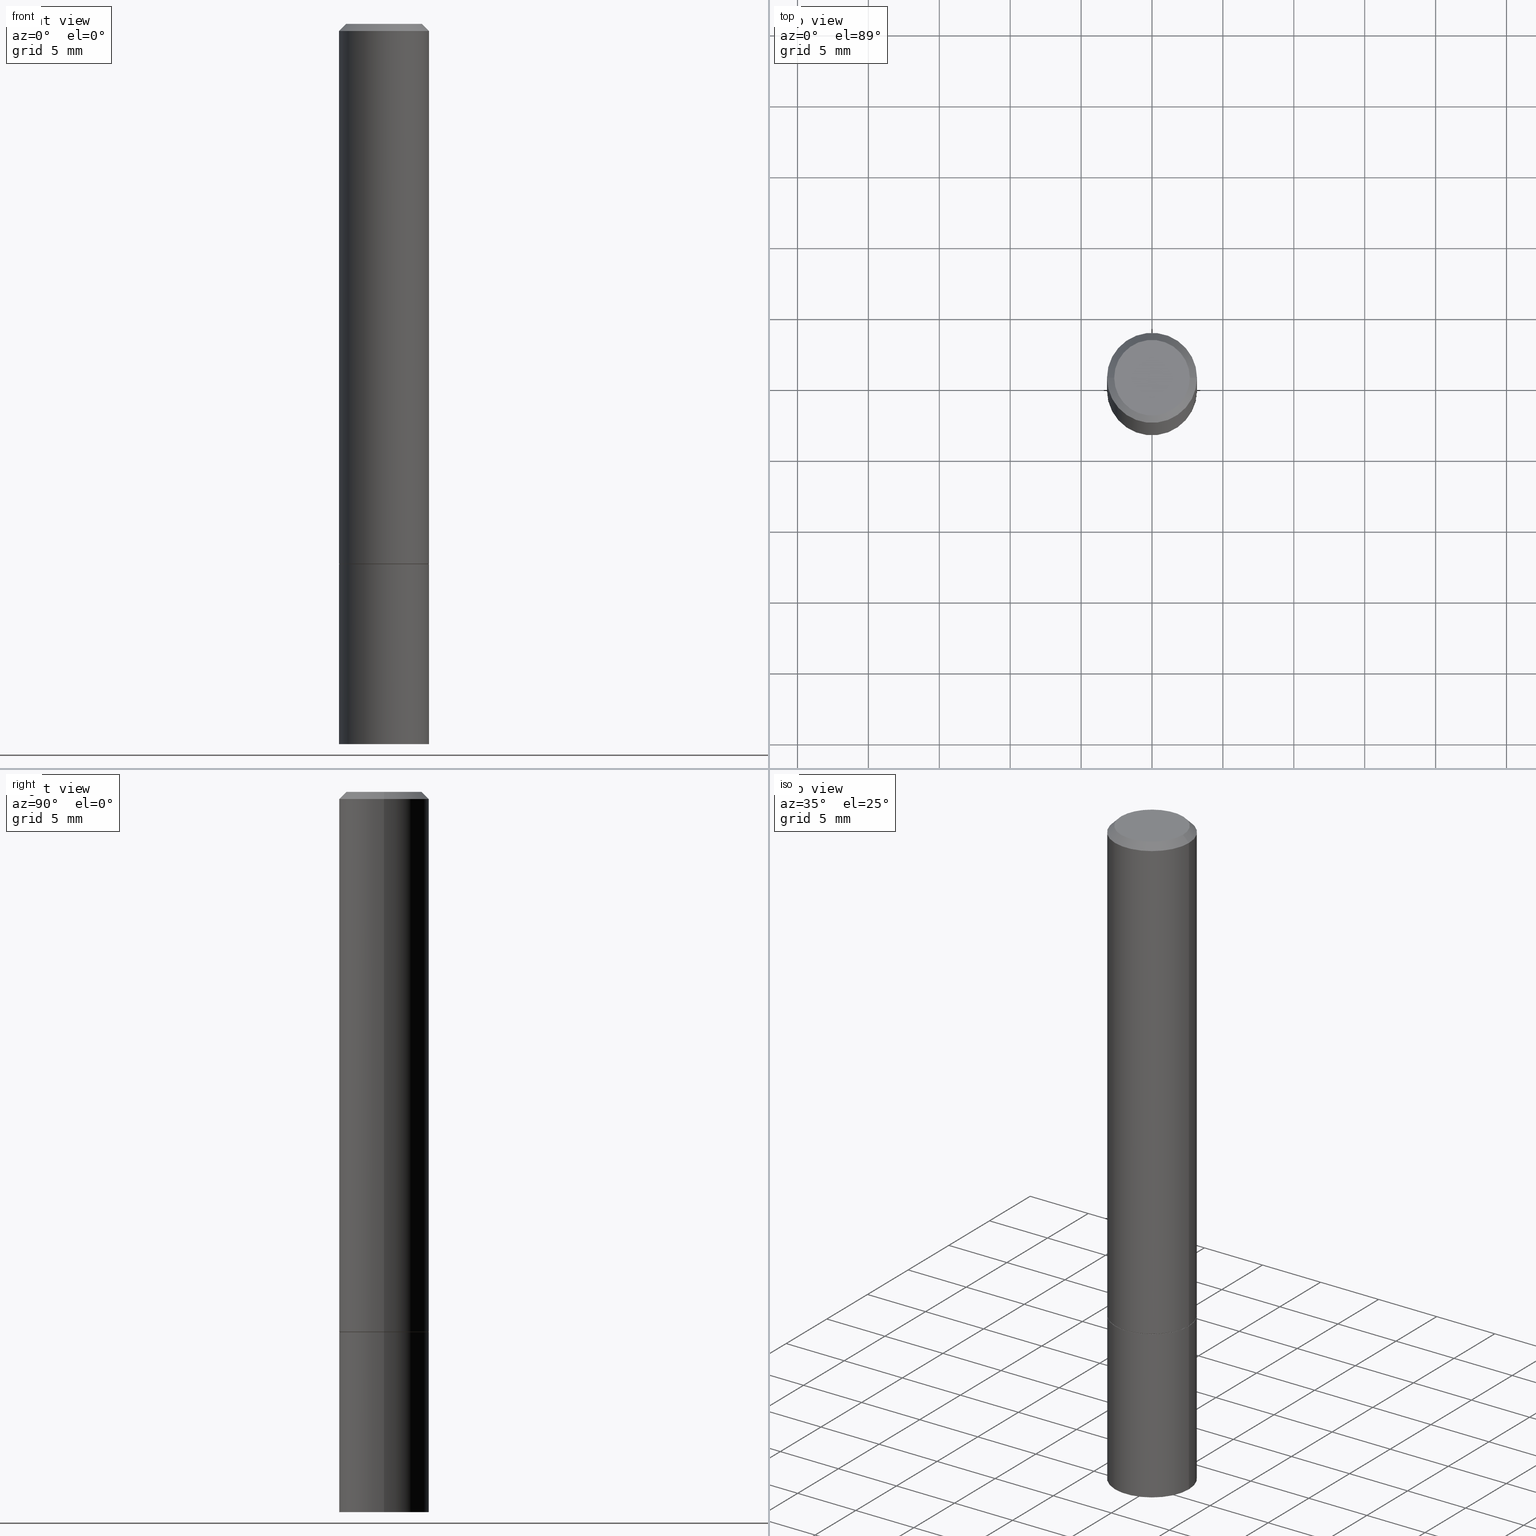
[diagram: canonical four-view strip — front | top / right | iso, engineering-drawing reading convention]
A machine part, canonical four-view strip (front | top / right | iso — engineering-drawing reading convention). The complete STEP part file that produces these views, byte-faithful:
ISO-10303-21;
HEADER;
FILE_DESCRIPTION (( 'STEP AP203' ),
    '1' );
FILE_NAME ('31364.STEP',
    '2024-02-27T13:04:48',
    ( '' ),
    ( '' ),
    'SwSTEP 2.0',
    'SolidWorks 2023',
    '' );
FILE_SCHEMA (( 'CONFIG_CONTROL_DESIGN' ));
ENDSEC;

DATA;
#1 = DIRECTION ( 'NONE',  ( 1.000000000000000000, -6.982962677686270655E-15, 0.000000000000000000 ) ) ;
#2 = VERTEX_POINT ( 'NONE', #97 ) ;
#3 = FACE_OUTER_BOUND ( 'NONE', #286, .T. ) ;
#4 = VECTOR ( 'NONE', #202, 39.37007874015748143 ) ;
#5 = CARTESIAN_POINT ( 'NONE',  ( 3.665757740471518732E-29, -5.233730526925875170E-15, -1.498999999999999666 ) ) ;
#6 = DIRECTION ( 'NONE',  ( 1.000000000000000000, -6.982962677686266711E-15, 4.876176775795935793E-29 ) ) ;
#7 = DIRECTION ( 'NONE',  ( 2.438088387897960049E-29, -3.491481338843145188E-15, -1.000000000000000000 ) ) ;
#8 = DIRECTION ( 'NONE',  ( 0.7071067811865466846, -7.319954787623252890E-15, -0.7071067811865483499 ) ) ;
#9 =( GEOMETRIC_REPRESENTATION_CONTEXT ( 3 ) GLOBAL_UNCERTAINTY_ASSIGNED_CONTEXT ( ( #156 ) ) GLOBAL_UNIT_ASSIGNED_CONTEXT ( ( #149, #267, #31 ) ) REPRESENTATION_CONTEXT ( 'NONE', 'WORKASPACE' ) );
#10 = APPROVAL ( #172, 'UNSPECIFIED' ) ;
#11 = CIRCLE ( 'NONE', #300, 0.1239999999999999991 ) ;
#12 = DIRECTION ( 'NONE',  ( -2.445468806185136877E-29, 3.491481338843145188E-15, 1.000000000000000000 ) ) ;
#13 = DIRECTION ( 'NONE',  ( 2.438088387897960049E-29, -3.491481338843145188E-15, -1.000000000000000000 ) ) ;
#14 = PERSON_AND_ORGANIZATION ( #332, #49 ) ;
#15 = ORIENTED_EDGE ( 'NONE', *, *, #160, .F. ) ;
#16 = LOCAL_TIME ( 8, 4, 48.00000000000000000, #302 ) ;
#17 = CARTESIAN_POINT ( 'NONE',  ( 0.1049999999999998573, -8.238720831321564811E-16, 5.444276250344142358E-30 ) ) ;
#18 = CARTESIAN_POINT ( 'NONE',  ( 0.000000000000000000, 0.000000000000000000, 0.000000000000000000 ) ) ;
#19 = APPROVAL_DATE_TIME ( #159, #283 ) ;
#20 = DATE_AND_TIME ( #219, #173 ) ;
#21 = CONICAL_SURFACE ( 'NONE', #309, 0.1249999999999998335, 0.7853981633974471688 ) ;
#22 = CIRCLE ( 'NONE', #224, 0.1049999999999998573 ) ;
#23 = CARTESIAN_POINT ( 'NONE',  ( 0.000000000000000000, 0.000000000000000000, 0.000000000000000000 ) ) ;
#24 = AXIS2_PLACEMENT_3D ( 'NONE', #258, #112, #206 ) ;
#25 = ORIENTED_EDGE ( 'NONE', *, *, #197, .T. ) ;
#26 = DIRECTION ( 'NONE',  ( -2.445468806185136597E-29, 3.491481338843145583E-15, 1.000000000000000000 ) ) ;
#27 =( LENGTH_UNIT ( ) NAMED_UNIT ( * ) SI_UNIT ( $, .METRE. ) );
#28 = AXIS2_PLACEMENT_3D ( 'NONE', #180, #7, #114 ) ;
#29 = CARTESIAN_POINT ( 'NONE',  ( -0.1250000000000000000, -5.221913923275378650E-15, -1.499999999999999778 ) ) ;
#30 = CALENDAR_DATE ( 2024, 27, 2 ) ;
#31 =( NAMED_UNIT ( * ) SI_UNIT ( $, .STERADIAN. ) SOLID_ANGLE_UNIT ( ) );
#32 = DIRECTION ( 'NONE',  ( -2.445468806185136597E-29, 3.491481338843145583E-15, 1.000000000000000000 ) ) ;
#33 = EDGE_LOOP ( 'NONE', ( #148, #312 ) ) ;
#34 = APPROVAL ( #120, 'UNSPECIFIED' ) ;
#35 = ORIENTED_EDGE ( 'NONE', *, *, #215, .F. ) ;
#36 = CARTESIAN_POINT ( 'NONE',  ( -0.1250000000000000000, -1.763601657151241635E-15, -1.498999999999999666 ) ) ;
#37 = ORIENTED_EDGE ( 'NONE', *, *, #190, .T. ) ;
#38 = PERSON_AND_ORGANIZATION ( #332, #49 ) ;
#39 = CLOSED_SHELL ( 'NONE', ( #304, #295, #102, #53, #93, #163, #134, #364 ) ) ;
#40 = VERTEX_POINT ( 'NONE', #17 ) ;
#41 = CALENDAR_DATE ( 2024, 27, 2 ) ;
#42 = CARTESIAN_POINT ( 'NONE',  ( 0.000000000000000000, 0.000000000000000000, 0.000000000000000000 ) ) ;
#43 = ORIENTED_EDGE ( 'NONE', *, *, #190, .F. ) ;
#44 = CC_DESIGN_DATE_AND_TIME_ASSIGNMENT ( #179, #186, ( #366 ) ) ;
#45 = PERSON_AND_ORGANIZATION ( #332, #49 ) ;
#46 = APPLICATION_PROTOCOL_DEFINITION ( 'international standard', 'config_control_design', 1994, #89 ) ;
#47 = ADVANCED_FACE ( 'NONE', ( #301 ), #205, .F. ) ;
#48 = CYLINDRICAL_SURFACE ( 'NONE', #352, 0.1249999999999999167 ) ;
#49 = ORGANIZATION ( 'UNSPECIFIED', 'UNSPECIFIED', '' ) ;
#50 = CC_DESIGN_APPROVAL ( #283, ( #366 ) ) ;
#51 = ADVANCED_FACE ( 'NONE', ( #147 ), #259, .T. ) ;
#52 = ORIENTED_EDGE ( 'NONE', *, *, #328, .F. ) ;
#53 = ADVANCED_FACE ( 'NONE', ( #280 ), #21, .T. ) ;
#54 = CARTESIAN_POINT ( 'NONE',  ( 0.1250000000000000000, -6.110092342975501516E-15, -1.499999999999999778 ) ) ;
#55 = CARTESIAN_POINT ( 'NONE',  ( 0.1249999999999998335, -9.273918764983031658E-16, -0.02000000000000002470 ) ) ;
#56 = CONICAL_SURFACE ( 'NONE', #365, 0.1239999999999999991, 0.7853981633972775267 ) ;
#57 = ORIENTED_EDGE ( 'NONE', *, *, #221, .F. ) ;
#58 = DIRECTION ( 'NONE',  ( -2.445468806185136597E-29, 3.491481338843145583E-15, 1.000000000000000000 ) ) ;
#59 = PERSON_AND_ORGANIZATION_ROLE ( 'creator' ) ;
#60 = LENGTH_MEASURE_WITH_UNIT ( LENGTH_MEASURE( 0.02539999999999999897 ), #27 );
#61 = PERSON_AND_ORGANIZATION ( #332, #49 ) ;
#62 = LINE ( 'NONE', #313, #236 ) ;
#63 = COORDINATED_UNIVERSAL_TIME_OFFSET ( 5, 0, .BEHIND. ) ;
#64 = APPROVAL_ROLE ( '' ) ;
#65 = AXIS2_PLACEMENT_3D ( 'NONE', #323, #349, #200 ) ;
#66 = EDGE_LOOP ( 'NONE', ( #52, #201 ) ) ;
#67 = DIRECTION ( 'NONE',  ( 2.445468806185136597E-29, -3.491481338843145583E-15, -1.000000000000000000 ) ) ;
#68 = PERSON_AND_ORGANIZATION ( #332, #49 ) ;
#69 = CIRCLE ( 'NONE', #307, 0.1250000000000000000 ) ;
#70 = PERSON_AND_ORGANIZATION ( #332, #49 ) ;
#71 = CC_DESIGN_DATE_AND_TIME_ASSIGNMENT ( #20, #212, ( #334 ) ) ;
#72 = COORDINATED_UNIVERSAL_TIME_OFFSET ( 5, 0, .BEHIND. ) ;
#73 = DIRECTION ( 'NONE',  ( -2.445468806185136877E-29, 3.491481338843145188E-15, 1.000000000000000000 ) ) ;
#74 = DIRECTION ( 'NONE',  ( 1.000000000000000000, -6.982962677686265922E-15, 4.876176775795935793E-29 ) ) ;
#75 = LINE ( 'NONE', #239, #287 ) ;
#76 = AXIS2_PLACEMENT_3D ( 'NONE', #233, #350, #74 ) ;
#77 = CIRCLE ( 'NONE', #310, 0.1250000000000000000 ) ;
#78 = EDGE_CURVE ( 'NONE', #327, #198, #242, .T. ) ;
#79 = VECTOR ( 'NONE', #73, 39.37007874015748143 ) ;
#80 = ORIENTED_EDGE ( 'NONE', *, *, #226, .F. ) ;
#81 = CARTESIAN_POINT ( 'NONE',  ( 3.665757740471518732E-29, -5.233730526925875170E-15, -1.498999999999999666 ) ) ;
#82 = VERTEX_POINT ( 'NONE', #191 ) ;
#83 = CARTESIAN_POINT ( 'NONE',  ( -0.1239999999999999991, -4.356149015922194741E-15, -1.500000000000000222 ) ) ;
#84 = ORIENTED_EDGE ( 'NONE', *, *, #78, .F. ) ;
#85 = LINE ( 'NONE', #110, #360 ) ;
#86 = CARTESIAN_POINT ( 'NONE',  ( 4.890937612370273194E-29, -6.982962677686291165E-15, -2.000000000000000000 ) ) ;
#87 = EDGE_LOOP ( 'NONE', ( #137, #213 ) ) ;
#88 = AXIS2_PLACEMENT_3D ( 'NONE', #344, #231, #140 ) ;
#89 = APPLICATION_CONTEXT ( 'configuration controlled 3d designs of mechanical parts and assemblies' ) ;
#90 = CARTESIAN_POINT ( 'NONE',  ( -0.1249999999999998335, 8.030407079339191532E-16, -0.02000000000000002470 ) ) ;
#91 = ORIENTED_EDGE ( 'NONE', *, *, #135, .F. ) ;
#92 = ORIENTED_EDGE ( 'NONE', *, *, #322, .T. ) ;
#93 = ADVANCED_FACE ( 'NONE', ( #308 ), #48, .T. ) ;
#94 = DIRECTION ( 'NONE',  ( -1.000000000000000000, 6.982962677686265922E-15, -4.876176775795935793E-29 ) ) ;
#95 = CLOSED_SHELL ( 'NONE', ( #51, #117, #47, #348 ) ) ;
#96 = APPROVAL_PERSON_ORGANIZATION ( #38, #34, #64 ) ;
#97 = CARTESIAN_POINT ( 'NONE',  ( -0.1250000000000000000, -5.221913923275378650E-15, -2.000000000000000000 ) ) ;
#98 = CARTESIAN_POINT ( 'NONE',  ( 0.1239999999999999991, -6.103109380297816290E-15, -1.500000000000000222 ) ) ;
#99 = DIRECTION ( 'NONE',  ( 1.000000000000000000, -6.982962677686270655E-15, 0.000000000000000000 ) ) ;
#100 = EDGE_CURVE ( 'NONE', #292, #198, #299, .T. ) ;
#101 = APPROVAL_STATUS ( 'not_yet_approved' ) ;
#102 = ADVANCED_FACE ( 'NONE', ( #216 ), #262, .T. ) ;
#103 = LOCAL_TIME ( 8, 4, 48.00000000000000000, #145 ) ;
#104 = EDGE_CURVE ( 'NONE', #235, #139, #105, .T. ) ;
#105 = CIRCLE ( 'NONE', #184, 0.1249999999999998335 ) ;
#106 = CARTESIAN_POINT ( 'NONE',  ( -0.1249999999999999167, 8.881784197001246407E-16, -6.148668862818628023E-30 ) ) ;
#107 = APPROVAL_PERSON_ORGANIZATION ( #68, #283, #189 ) ;
#108 = CARTESIAN_POINT ( 'NONE',  ( -0.1250000000000000000, 8.881784197001252323E-16, -6.148668862818632227E-30 ) ) ;
#109 = DIRECTION ( 'NONE',  ( 1.000000000000000000, -6.982962677686266711E-15, 0.000000000000000000 ) ) ;
#110 = CARTESIAN_POINT ( 'NONE',  ( 0.1249999999999999167, -8.728703347107827472E-16, 6.095220969744915537E-30 ) ) ;
#111 = SHAPE_DEFINITION_REPRESENTATION ( #263, #264 ) ;
#112 = DIRECTION ( 'NONE',  ( -2.445468806185136597E-29, 3.491481338843145583E-15, 1.000000000000000000 ) ) ;
#113 = AXIS2_PLACEMENT_3D ( 'NONE', #296, #13, #94 ) ;
#114 = DIRECTION ( 'NONE',  ( -1.000000000000000000, 6.982962677686265922E-15, -4.876176775795935793E-29 ) ) ;
#115 = AXIS2_PLACEMENT_3D ( 'NONE', #285, #26, #362 ) ;
#116 = EDGE_LOOP ( 'NONE', ( #337, #291, #218, #126 ) ) ;
#117 = ADVANCED_FACE ( 'NONE', ( #157 ), #359, .T. ) ;
#118 = FACE_OUTER_BOUND ( 'NONE', #260, .T. ) ;
#119 = ORIENTED_EDGE ( 'NONE', *, *, #270, .F. ) ;
#120 = APPROVAL_STATUS ( 'not_yet_approved' ) ;
#121 = VERTEX_POINT ( 'NONE', #275 ) ;
#122 = ORIENTED_EDGE ( 'NONE', *, *, #322, .F. ) ;
#123 = SECURITY_CLASSIFICATION_LEVEL ( 'unclassified' ) ;
#124 = PLANE ( 'NONE',  #76 ) ;
#125 = CARTESIAN_POINT ( 'NONE',  ( 0.000000000000000000, 0.000000000000000000, 0.000000000000000000 ) ) ;
#126 = ORIENTED_EDGE ( 'NONE', *, *, #104, .T. ) ;
#127 = EDGE_CURVE ( 'NONE', #121, #40, #223, .T. ) ;
#128 = MANIFOLD_SOLID_BREP ( 'Body-Move/Copy2[2]', #39 ) ;
#129 = PRODUCT ( '31364', '31364', '', ( #305 ) ) ;
#130 = CC_DESIGN_APPROVAL ( #34, ( #326 ) ) ;
#131 = DIRECTION ( 'NONE',  ( -2.445468806185136597E-29, 3.491481338843145583E-15, 1.000000000000000000 ) ) ;
#132 = CIRCLE ( 'NONE', #185, 0.1250000000000000000 ) ;
#133 = DIRECTION ( 'NONE',  ( -2.445468806185136597E-29, 3.491481338843145583E-15, 1.000000000000000000 ) ) ;
#134 = ADVANCED_FACE ( 'NONE', ( #214 ), #124, .F. ) ;
#135 = EDGE_CURVE ( 'NONE', #121, #235, #75, .T. ) ;
#136 = CC_DESIGN_PERSON_AND_ORGANIZATION_ASSIGNMENT ( #45, #155, ( #334 ) ) ;
#137 = ORIENTED_EDGE ( 'NONE', *, *, #226, .T. ) ;
#138 = ORIENTED_EDGE ( 'NONE', *, *, #303, .T. ) ;
#139 = VERTEX_POINT ( 'NONE', #55 ) ;
#140 = DIRECTION ( 'NONE',  ( 1.000000000000000000, -6.982962677686270655E-15, 0.000000000000000000 ) ) ;
#141 = AXIS2_PLACEMENT_3D ( 'NONE', #42, #152, #154 ) ;
#142 = FACE_OUTER_BOUND ( 'NONE', #345, .T. ) ;
#143 = ORIENTED_EDGE ( 'NONE', *, *, #221, .T. ) ;
#144 = ORIENTED_EDGE ( 'NONE', *, *, #298, .T. ) ;
#145 = COORDINATED_UNIVERSAL_TIME_OFFSET ( 5, 0, .BEHIND. ) ;
#146 = DIRECTION ( 'NONE',  ( 1.000000000000000000, -6.982962677686265922E-15, 4.876176775795935232E-29 ) ) ;
#147 = FACE_OUTER_BOUND ( 'NONE', #355, .T. ) ;
#148 = ORIENTED_EDGE ( 'NONE', *, *, #303, .F. ) ;
#149 =( CONVERSION_BASED_UNIT ( 'INCH', #60 ) LENGTH_UNIT ( ) NAMED_UNIT ( #346 ) );
#150 = ORIENTED_EDGE ( 'NONE', *, *, #104, .F. ) ;
#151 = EDGE_CURVE ( 'NONE', #2, #327, #188, .T. ) ;
#152 = DIRECTION ( 'NONE',  ( 0.000000000000000000, 0.000000000000000000, 1.000000000000000000 ) ) ;
#153 = ORIENTED_EDGE ( 'NONE', *, *, #151, .T. ) ;
#154 = DIRECTION ( 'NONE',  ( 1.000000000000000000, 0.000000000000000000, 0.000000000000000000 ) ) ;
#155 = PERSON_AND_ORGANIZATION_ROLE ( 'classification_officer' ) ;
#156 = UNCERTAINTY_MEASURE_WITH_UNIT (LENGTH_MEASURE( 1.000000000000000082E-05 ), #149, 'distance_accuracy_value', 'NONE');
#157 = FACE_OUTER_BOUND ( 'NONE', #33, .T. ) ;
#158 = ORIENTED_EDGE ( 'NONE', *, *, #278, .F. ) ;
#159 = DATE_AND_TIME ( #361, #253 ) ;
#160 = EDGE_CURVE ( 'NONE', #139, #235, #281, .T. ) ;
#161 = APPLICATION_PROTOCOL_DEFINITION ( 'international standard', 'config_control_design', 1994, #288 ) ;
#162 = VECTOR ( 'NONE', #227, 39.37007874015748143 ) ;
#163 = ADVANCED_FACE ( 'NONE', ( #293 ), #166, .T. ) ;
#164 = DIRECTION ( 'NONE',  ( 2.445468806185136597E-29, -3.491481338843145583E-15, -1.000000000000000000 ) ) ;
#165 = DIRECTION ( 'NONE',  ( 1.000000000000000000, -6.982962677686270655E-15, 0.000000000000000000 ) ) ;
#166 = CONICAL_SURFACE ( 'NONE', #88, 0.1239999999999999991, 0.7853981633972775267 ) ;
#167 = AXIS2_PLACEMENT_3D ( 'NONE', #255, #58, #6 ) ;
#168 = ORIENTED_EDGE ( 'NONE', *, *, #127, .T. ) ;
#169 = CARTESIAN_POINT ( 'NONE',  ( 4.890937612370279289E-31, -6.982962677686299005E-17, -0.02000000000000002470 ) ) ;
#170 = ORIENTED_EDGE ( 'NONE', *, *, #278, .T. ) ;
#171 = CC_DESIGN_PERSON_AND_ORGANIZATION_ASSIGNMENT ( #70, #210, ( #366 ) ) ;
#172 = APPROVAL_STATUS ( 'not_yet_approved' ) ;
#173 = LOCAL_TIME ( 8, 4, 48.00000000000000000, #72 ) ;
#174 = ORIENTED_EDGE ( 'NONE', *, *, #78, .T. ) ;
#175 = ORIENTED_EDGE ( 'NONE', *, *, #215, .T. ) ;
#176 = APPROVAL_DATE_TIME ( #316, #10 ) ;
#177 = DIRECTION ( 'NONE',  ( -2.445468806185136597E-29, 3.491481338843145583E-15, 1.000000000000000000 ) ) ;
#178 = ORIENTED_EDGE ( 'NONE', *, *, #160, .T. ) ;
#179 = DATE_AND_TIME ( #30, #289 ) ;
#180 = CARTESIAN_POINT ( 'NONE',  ( 7.332110811570569396E-16, 0.1049999999999998573, -3.666055405785298010E-16 ) ) ;
#181 = EDGE_LOOP ( 'NONE', ( #35, #25, #92, #57 ) ) ;
#182 = LINE ( 'NONE', #108, #162 ) ;
#183 = VERTEX_POINT ( 'NONE', #36 ) ;
#184 = AXIS2_PLACEMENT_3D ( 'NONE', #268, #209, #261 ) ;
#185 = AXIS2_PLACEMENT_3D ( 'NONE', #5, #321, #1 ) ;
#186 = DATE_TIME_ROLE ( 'creation_date' ) ;
#187 = ORIENTED_EDGE ( 'NONE', *, *, #311, .F. ) ;
#188 = CIRCLE ( 'NONE', #331, 0.1250000000000000000 ) ;
#189 = APPROVAL_ROLE ( '' ) ;
#190 = EDGE_CURVE ( 'NONE', #2, #292, #182, .T. ) ;
#191 = CARTESIAN_POINT ( 'NONE',  ( 0.1250000000000000000, -6.106600861636658508E-15, -1.498999999999999666 ) ) ;
#192 = FACE_OUTER_BOUND ( 'NONE', #272, .T. ) ;
#193 = CARTESIAN_POINT ( 'NONE',  ( 4.890937612370279289E-31, -6.982962677686299005E-17, -0.02000000000000002470 ) ) ;
#194 = CC_DESIGN_APPROVAL ( #10, ( #334 ) ) ;
#195 = ORIENTED_EDGE ( 'NONE', *, *, #328, .T. ) ;
#196 = DIRECTION ( 'NONE',  ( -2.445468806185136597E-29, 3.491481338843145583E-15, 1.000000000000000000 ) ) ;
#197 = EDGE_CURVE ( 'NONE', #234, #222, #11, .T. ) ;
#198 = VERTEX_POINT ( 'NONE', #54 ) ;
#199 = DIRECTION ( 'NONE',  ( -2.445468806185136597E-29, 3.491481338843145583E-15, 1.000000000000000000 ) ) ;
#200 = DIRECTION ( 'NONE',  ( 1.000000000000000000, -6.982962677686266711E-15, 4.876176775795935793E-29 ) ) ;
#201 = ORIENTED_EDGE ( 'NONE', *, *, #197, .F. ) ;
#202 = DIRECTION ( 'NONE',  ( -0.7071067811864267805, 7.493145998869918709E-15, 0.7071067811866682540 ) ) ;
#203 = CALENDAR_DATE ( 2024, 27, 2 ) ;
#204 = DIRECTION ( 'NONE',  ( 1.000000000000000000, -6.982962677686270655E-15, 0.000000000000000000 ) ) ;
#205 = PLANE ( 'NONE',  #276 ) ;
#206 = DIRECTION ( 'NONE',  ( 1.000000000000000000, -6.982962677686270655E-15, 0.000000000000000000 ) ) ;
#207 = CC_DESIGN_PERSON_AND_ORGANIZATION_ASSIGNMENT ( #14, #273, ( #326 ) ) ;
#208 = DESIGN_CONTEXT ( 'detailed design', #89, 'design' ) ;
#209 = DIRECTION ( 'NONE',  ( -2.445468806185136597E-29, 3.491481338843145583E-15, 1.000000000000000000 ) ) ;
#210 = PERSON_AND_ORGANIZATION_ROLE ( 'creator' ) ;
#211 = DIRECTION ( 'NONE',  ( -0.7071067811865466846, 2.468850131082247989E-15, -0.7071067811865483499 ) ) ;
#212 = DATE_TIME_ROLE ( 'classification_date' ) ;
#213 = ORIENTED_EDGE ( 'NONE', *, *, #100, .T. ) ;
#214 = FACE_OUTER_BOUND ( 'NONE', #66, .T. ) ;
#215 = EDGE_CURVE ( 'NONE', #234, #183, #250, .T. ) ;
#216 = FACE_OUTER_BOUND ( 'NONE', #232, .T. ) ;
#217 = PERSON_AND_ORGANIZATION ( #332, #49 ) ;
#218 = ORIENTED_EDGE ( 'NONE', *, *, #135, .T. ) ;
#219 = CALENDAR_DATE ( 2024, 27, 2 ) ;
#220 = CIRCLE ( 'NONE', #24, 0.1250000000000000000 ) ;
#221 = EDGE_CURVE ( 'NONE', #183, #82, #132, .T. ) ;
#222 = VERTEX_POINT ( 'NONE', #347 ) ;
#223 = CIRCLE ( 'NONE', #252, 0.1049999999999998573 ) ;
#224 = AXIS2_PLACEMENT_3D ( 'NONE', #228, #32, #146 ) ;
#225 = DIRECTION ( 'NONE',  ( -2.445468806185136597E-29, 3.491481338843145583E-15, 1.000000000000000000 ) ) ;
#226 = EDGE_CURVE ( 'NONE', #198, #292, #69, .T. ) ;
#227 = DIRECTION ( 'NONE',  ( -2.445468806185136877E-29, 3.491481338843145188E-15, 1.000000000000000000 ) ) ;
#228 = CARTESIAN_POINT ( 'NONE',  ( 0.000000000000000000, 0.000000000000000000, 0.000000000000000000 ) ) ;
#229 = CARTESIAN_POINT ( 'NONE',  ( -0.1239999999999999991, -4.350850561573971550E-15, -1.500000000000000222 ) ) ;
#230 = CIRCLE ( 'NONE', #115, 0.1239999999999999991 ) ;
#231 = DIRECTION ( 'NONE',  ( -2.445468806185136597E-29, 3.491481338843145583E-15, 1.000000000000000000 ) ) ;
#232 = EDGE_LOOP ( 'NONE', ( #274, #251, #178, #91 ) ) ;
#233 = CARTESIAN_POINT ( 'NONE',  ( 3.668203209277704335E-29, -5.237222008264717388E-15, -1.499999999999999778 ) ) ;
#234 = VERTEX_POINT ( 'NONE', #229 ) ;
#235 = VERTEX_POINT ( 'NONE', #90 ) ;
#236 = VECTOR ( 'NONE', #8, 39.37007874015748143 ) ;
#237 = CC_DESIGN_PERSON_AND_ORGANIZATION_ASSIGNMENT ( #217, #330, ( #129 ) ) ;
#238 = DIRECTION ( 'NONE',  ( 0.7071067811864267805, -2.468850131080992517E-15, 0.7071067811866682540 ) ) ;
#239 = CARTESIAN_POINT ( 'NONE',  ( -0.1249999999999998335, 8.030407079339191532E-16, -0.02000000000000002470 ) ) ;
#240 = DIRECTION ( 'NONE',  ( 1.000000000000000000, -6.982962677686266711E-15, 4.876176775795935793E-29 ) ) ;
#241 = CARTESIAN_POINT ( 'NONE',  ( 0.1250000000000000000, -7.855833012397075293E-15, -2.000000000000000000 ) ) ;
#242 = LINE ( 'NONE', #333, #79 ) ;
#243 = COORDINATED_UNIVERSAL_TIME_OFFSET ( 5, 0, .BEHIND. ) ;
#244 = AXIS2_PLACEMENT_3D ( 'NONE', #18, #363, #240 ) ;
#245 = VECTOR ( 'NONE', #238, 39.37007874015748143 ) ;
#246 = DIRECTION ( 'NONE',  ( 1.000000000000000000, -6.982962677686266711E-15, 4.876176775795935793E-29 ) ) ;
#247 = DIRECTION ( 'NONE',  ( -2.445468806185136597E-29, 3.491481338843145583E-15, 1.000000000000000000 ) ) ;
#248 = MANIFOLD_SOLID_BREP ( 'Body-Move/Copy2[1]', #95 ) ;
#249 = PRODUCT_RELATED_PRODUCT_CATEGORY ( 'detail', '', ( #129 ) ) ;
#250 = LINE ( 'NONE', #83, #4 ) ;
#251 = ORIENTED_EDGE ( 'NONE', *, *, #257, .T. ) ;
#252 = AXIS2_PLACEMENT_3D ( 'NONE', #125, #131, #356 ) ;
#253 = LOCAL_TIME ( 8, 4, 48.00000000000000000, #243 ) ;
#254 = DIRECTION ( 'NONE',  ( 1.000000000000000000, -6.982962677686270655E-15, 0.000000000000000000 ) ) ;
#255 = CARTESIAN_POINT ( 'NONE',  ( 0.000000000000000000, 0.000000000000000000, 0.000000000000000000 ) ) ;
#256 = PERSON_AND_ORGANIZATION ( #332, #49 ) ;
#257 = EDGE_CURVE ( 'NONE', #40, #139, #62, .T. ) ;
#258 = CARTESIAN_POINT ( 'NONE',  ( 4.890937612370273194E-29, -6.982962677686291165E-15, -2.000000000000000000 ) ) ;
#259 = CYLINDRICAL_SURFACE ( 'NONE', #244, 0.1250000000000000000 ) ;
#260 = EDGE_LOOP ( 'NONE', ( #195, #175, #187, #122 ) ) ;
#261 = DIRECTION ( 'NONE',  ( 1.000000000000000000, -6.982962677686266711E-15, 0.000000000000000000 ) ) ;
#262 = CONICAL_SURFACE ( 'NONE', #336, 0.1249999999999998335, 0.7853981633974471688 ) ;
#263 = PRODUCT_DEFINITION_SHAPE ( 'NONE', 'NONE',  #366 ) ;
#264 = ADVANCED_BREP_SHAPE_REPRESENTATION ( '31364', ( #248, #128, #141 ), #9 ) ;
#265 = DIRECTION ( 'NONE',  ( -2.445468806185136597E-29, 3.491481338843145583E-15, 1.000000000000000000 ) ) ;
#266 = DIRECTION ( 'NONE',  ( -1.000000000000000000, 6.982962677686265922E-15, -4.876176775795935793E-29 ) ) ;
#267 =( NAMED_UNIT ( * ) PLANE_ANGLE_UNIT ( ) SI_UNIT ( $, .RADIAN. ) );
#268 = CARTESIAN_POINT ( 'NONE',  ( 4.890937612370279289E-31, -6.982962677686299005E-17, -0.02000000000000002470 ) ) ;
#269 = APPROVAL_ROLE ( '' ) ;
#270 = EDGE_CURVE ( 'NONE', #183, #235, #340, .T. ) ;
#271 = DATE_AND_TIME ( #41, #16 ) ;
#272 = EDGE_LOOP ( 'NONE', ( #43, #153, #174, #351 ) ) ;
#273 = PERSON_AND_ORGANIZATION_ROLE ( 'design_supplier' ) ;
#274 = ORIENTED_EDGE ( 'NONE', *, *, #298, .F. ) ;
#275 = CARTESIAN_POINT ( 'NONE',  ( -0.1049999999999998573, 7.681258945454880957E-16, -5.249639473182158869E-30 ) ) ;
#276 = AXIS2_PLACEMENT_3D ( 'NONE', #318, #294, #266 ) ;
#277 = APPROVAL_PERSON_ORGANIZATION ( #61, #10, #269 ) ;
#278 = EDGE_CURVE ( 'NONE', #82, #139, #85, .T. ) ;
#279 = CC_DESIGN_PERSON_AND_ORGANIZATION_ASSIGNMENT ( #256, #59, ( #326 ) ) ;
#280 = FACE_OUTER_BOUND ( 'NONE', #116, .T. ) ;
#281 = CIRCLE ( 'NONE', #343, 0.1249999999999998335 ) ;
#282 = DIRECTION ( 'NONE',  ( -1.000000000000000000, 6.982962677686266711E-15, 0.000000000000000000 ) ) ;
#283 = APPROVAL ( #101, 'UNSPECIFIED' ) ;
#284 = CARTESIAN_POINT ( 'NONE',  ( 3.668203209277704335E-29, -5.237222008264717388E-15, -1.499999999999999778 ) ) ;
#285 = CARTESIAN_POINT ( 'NONE',  ( 3.668203209277704895E-29, -5.237222008264718177E-15, -1.500000000000000222 ) ) ;
#286 = EDGE_LOOP ( 'NONE', ( #168, #144 ) ) ;
#287 = VECTOR ( 'NONE', #211, 39.37007874015748143 ) ;
#288 = APPLICATION_CONTEXT ( 'configuration controlled 3d designs of mechanical parts and assemblies' ) ;
#289 = LOCAL_TIME ( 8, 4, 48.00000000000000000, #63 ) ;
#290 = DIRECTION ( 'NONE',  ( -2.445468806185136877E-29, 3.491481338843145188E-15, 1.000000000000000000 ) ) ;
#291 = ORIENTED_EDGE ( 'NONE', *, *, #127, .F. ) ;
#292 = VERTEX_POINT ( 'NONE', #29 ) ;
#293 = FACE_OUTER_BOUND ( 'NONE', #181, .T. ) ;
#294 = DIRECTION ( 'NONE',  ( 2.438088387897960049E-29, -3.491481338843145188E-15, -1.000000000000000000 ) ) ;
#295 = ADVANCED_FACE ( 'NONE', ( #142 ), #317, .T. ) ;
#296 = CARTESIAN_POINT ( 'NONE',  ( 8.728703347108321496E-16, 0.1249999999999930195, -2.000000000000000444 ) ) ;
#297 = ORIENTED_EDGE ( 'NONE', *, *, #270, .T. ) ;
#298 = EDGE_CURVE ( 'NONE', #40, #121, #22, .T. ) ;
#299 = CIRCLE ( 'NONE', #342, 0.1250000000000000000 ) ;
#300 = AXIS2_PLACEMENT_3D ( 'NONE', #339, #177, #254 ) ;
#301 = FACE_OUTER_BOUND ( 'NONE', #87, .T. ) ;
#302 = COORDINATED_UNIVERSAL_TIME_OFFSET ( 5, 0, .BEHIND. ) ;
#303 = EDGE_CURVE ( 'NONE', #327, #2, #220, .T. ) ;
#304 = ADVANCED_FACE ( 'NONE', ( #118 ), #56, .T. ) ;
#305 = MECHANICAL_CONTEXT ( 'NONE', #288, 'mechanical' ) ;
#306 = CARTESIAN_POINT ( 'NONE',  ( 3.668203209277704335E-29, -5.237222008264717388E-15, -1.499999999999999778 ) ) ;
#307 = AXIS2_PLACEMENT_3D ( 'NONE', #284, #265, #204 ) ;
#308 = FACE_OUTER_BOUND ( 'NONE', #341, .T. ) ;
#309 = AXIS2_PLACEMENT_3D ( 'NONE', #193, #164, #282 ) ;
#310 = AXIS2_PLACEMENT_3D ( 'NONE', #81, #199, #357 ) ;
#311 = EDGE_CURVE ( 'NONE', #82, #183, #77, .T. ) ;
#312 = ORIENTED_EDGE ( 'NONE', *, *, #151, .F. ) ;
#313 = CARTESIAN_POINT ( 'NONE',  ( 0.1249999999999998335, -9.273918764983031658E-16, -0.02000000000000002470 ) ) ;
#314 = ORIENTED_EDGE ( 'NONE', *, *, #311, .T. ) ;
#315 = CC_DESIGN_SECURITY_CLASSIFICATION ( #334, ( #326 ) ) ;
#316 = DATE_AND_TIME ( #203, #103 ) ;
#317 = CYLINDRICAL_SURFACE ( 'NONE', #167, 0.1249999999999999167 ) ;
#318 = CARTESIAN_POINT ( 'NONE',  ( 8.728703347108198236E-16, 0.1249999999999947542, -1.500000000000000444 ) ) ;
#319 = APPROVAL_DATE_TIME ( #271, #34 ) ;
#320 = PLANE ( 'NONE',  #28 ) ;
#321 = DIRECTION ( 'NONE',  ( -2.445468806185136597E-29, 3.491481338843145583E-15, 1.000000000000000000 ) ) ;
#322 = EDGE_CURVE ( 'NONE', #222, #82, #354, .T. ) ;
#323 = CARTESIAN_POINT ( 'NONE',  ( 0.000000000000000000, 0.000000000000000000, 0.000000000000000000 ) ) ;
#324 = DIRECTION ( 'NONE',  ( -1.000000000000000000, 6.982962677686266711E-15, 0.000000000000000000 ) ) ;
#325 = CARTESIAN_POINT ( 'NONE',  ( 3.668203209277704895E-29, -5.237222008264718177E-15, -1.500000000000000222 ) ) ;
#326 = PRODUCT_DEFINITION_FORMATION_WITH_SPECIFIED_SOURCE ( 'ANY', '', #129, .NOT_KNOWN. ) ;
#327 = VERTEX_POINT ( 'NONE', #241 ) ;
#328 = EDGE_CURVE ( 'NONE', #222, #234, #230, .T. ) ;
#329 = CARTESIAN_POINT ( 'NONE',  ( 4.890937612370279289E-31, -6.982962677686299005E-17, -0.02000000000000002470 ) ) ;
#330 = PERSON_AND_ORGANIZATION_ROLE ( 'design_owner' ) ;
#331 = AXIS2_PLACEMENT_3D ( 'NONE', #86, #247, #165 ) ;
#332 = PERSON ( 'UNSPECIFIED', 'UNSPECIFIED', 'UNSPECIFIED', ('UNSPECIFIED'), ('UNSPECIFIED'), ('UNSPECIFIED') ) ;
#333 = CARTESIAN_POINT ( 'NONE',  ( 0.1250000000000000000, -8.728703347107833388E-16, 6.095220969744919741E-30 ) ) ;
#334 = SECURITY_CLASSIFICATION ( '', '', #123 ) ;
#335 = CYLINDRICAL_SURFACE ( 'NONE', #65, 0.1250000000000000000 ) ;
#336 = AXIS2_PLACEMENT_3D ( 'NONE', #329, #67, #324 ) ;
#337 = ORIENTED_EDGE ( 'NONE', *, *, #257, .F. ) ;
#338 = DIRECTION ( 'NONE',  ( 1.000000000000000000, -6.982962677686270655E-15, 0.000000000000000000 ) ) ;
#339 = CARTESIAN_POINT ( 'NONE',  ( 3.668203209277704895E-29, -5.237222008264718177E-15, -1.500000000000000222 ) ) ;
#340 = LINE ( 'NONE', #106, #353 ) ;
#341 = EDGE_LOOP ( 'NONE', ( #119, #143, #170, #150 ) ) ;
#342 = AXIS2_PLACEMENT_3D ( 'NONE', #306, #358, #99 ) ;
#343 = AXIS2_PLACEMENT_3D ( 'NONE', #169, #196, #109 ) ;
#344 = CARTESIAN_POINT ( 'NONE',  ( 3.668203209277704895E-29, -5.237222008264718177E-15, -1.500000000000000222 ) ) ;
#345 = EDGE_LOOP ( 'NONE', ( #314, #297, #15, #158 ) ) ;
#346 = DIMENSIONAL_EXPONENTS ( 1.000000000000000000, 0.000000000000000000, 0.000000000000000000, 0.000000000000000000, 0.000000000000000000, 0.000000000000000000, 0.000000000000000000 ) ;
#347 = CARTESIAN_POINT ( 'NONE',  ( 0.1239999999999999991, -6.103109380297816290E-15, -1.500000000000000222 ) ) ;
#348 = ADVANCED_FACE ( 'NONE', ( #192 ), #335, .T. ) ;
#349 = DIRECTION ( 'NONE',  ( -2.445468806185136597E-29, 3.491481338843145583E-15, 1.000000000000000000 ) ) ;
#350 = DIRECTION ( 'NONE',  ( -2.438088387897960049E-29, 3.491481338843145188E-15, 1.000000000000000000 ) ) ;
#351 = ORIENTED_EDGE ( 'NONE', *, *, #100, .F. ) ;
#352 = AXIS2_PLACEMENT_3D ( 'NONE', #23, #133, #246 ) ;
#353 = VECTOR ( 'NONE', #12, 39.37007874015748143 ) ;
#354 = LINE ( 'NONE', #98, #245 ) ;
#355 = EDGE_LOOP ( 'NONE', ( #138, #37, #80, #84 ) ) ;
#356 = DIRECTION ( 'NONE',  ( 1.000000000000000000, -6.982962677686265922E-15, 4.876176775795935232E-29 ) ) ;
#357 = DIRECTION ( 'NONE',  ( 1.000000000000000000, -6.982962677686270655E-15, 0.000000000000000000 ) ) ;
#358 = DIRECTION ( 'NONE',  ( -2.445468806185136597E-29, 3.491481338843145583E-15, 1.000000000000000000 ) ) ;
#359 = PLANE ( 'NONE',  #113 ) ;
#360 = VECTOR ( 'NONE', #290, 39.37007874015748143 ) ;
#361 = CALENDAR_DATE ( 2024, 27, 2 ) ;
#362 = DIRECTION ( 'NONE',  ( 1.000000000000000000, -6.982962677686270655E-15, 0.000000000000000000 ) ) ;
#363 = DIRECTION ( 'NONE',  ( -2.445468806185136597E-29, 3.491481338843145583E-15, 1.000000000000000000 ) ) ;
#364 = ADVANCED_FACE ( 'NONE', ( #3 ), #320, .F. ) ;
#365 = AXIS2_PLACEMENT_3D ( 'NONE', #325, #225, #338 ) ;
#366 = PRODUCT_DEFINITION ( 'UNKNOWN', '', #326, #208 ) ;
ENDSEC;
END-ISO-10303-21;
